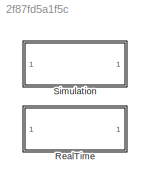
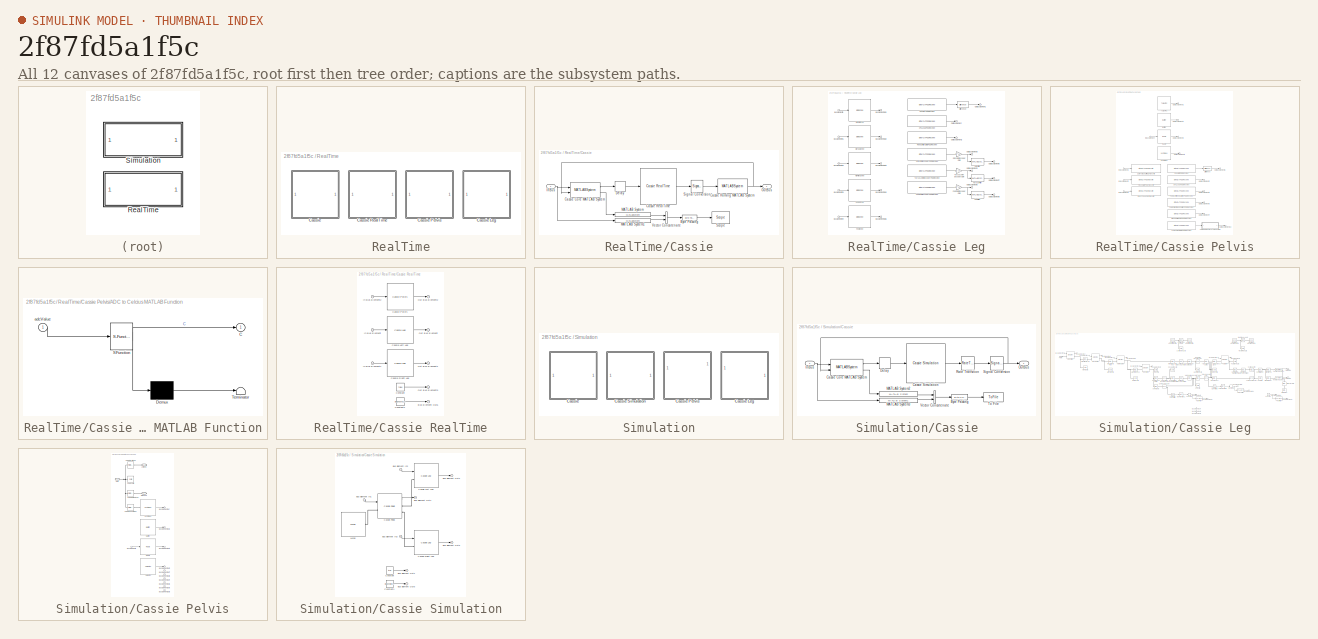
[diagram: thumbnail index - all 12 canvases of the model, root first then tree order]
MODEL slx_2f87fd5a1f5c
KIND library
CONFIG AbsTol = auto
CONFIG EnableMultiTasking = off
CONFIG FixedStep = auto
CONFIG MaxStep = auto
CONFIG MinStep = auto
CONFIG RelTol = 1e-3
CONFIG SampleTimeConstraint = Unconstrained
CONFIG Solver = VariableStepAuto
CONFIG SolverName = VariableStepAuto
CONFIG StartTime = 0.0
CONFIG StopTime = 10.0
BLOCK [SubSystem] RealTime
  Ports = []
  RequestExecContextInheritance = off
  Variant = off
BLOCK [SubSystem] RealTime/Cassie
  InitFcn = % Import bus definitions\nCassieModule.importBuses;
  Ports = [1, 1]
  RequestExecContextInheritance = off
  Variant = off
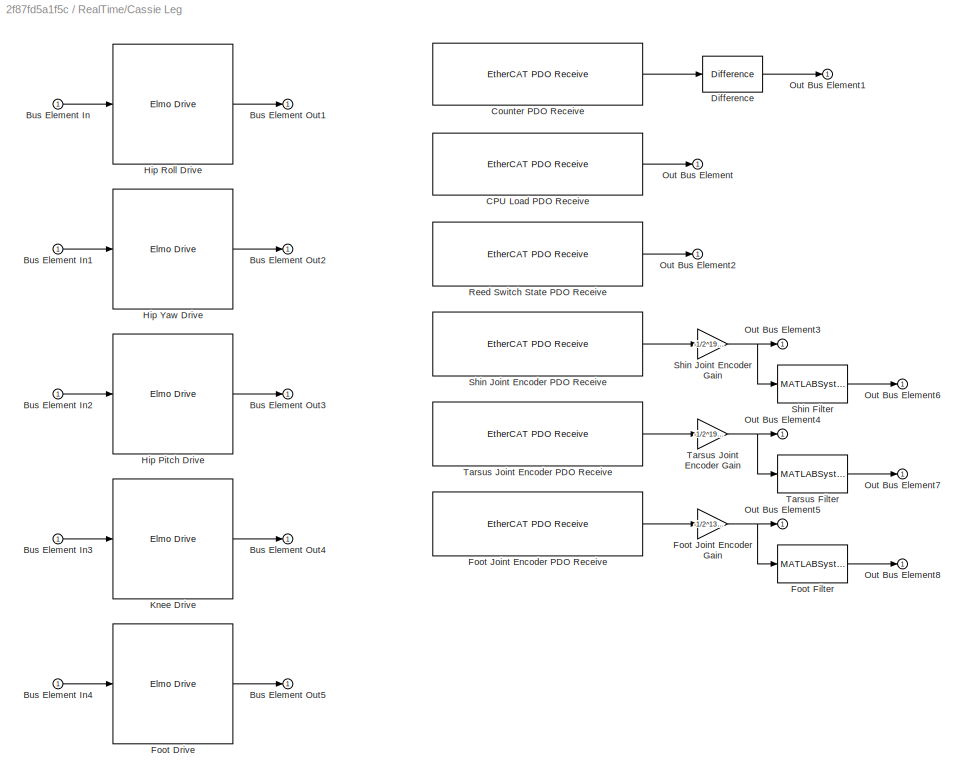
BLOCK [SubSystem] RealTime/Cassie Leg
  PermitHierarchicalResolution = None
  Ports = [1, 1]
  RequestExecContextInheritance = off
  Variant = off
BLOCK [Inport] RealTime/Cassie Leg/Bus Element In
  IconDisplay = Port number
BLOCK [Inport] RealTime/Cassie Leg/Bus Element In1
  IconDisplay = Port number
BLOCK [Inport] RealTime/Cassie Leg/Bus Element In2
  IconDisplay = Port number
BLOCK [Inport] RealTime/Cassie Leg/Bus Element In3
  IconDisplay = Port number
BLOCK [Inport] RealTime/Cassie Leg/Bus Element In4
  IconDisplay = Port number
BLOCK [Outport] RealTime/Cassie Leg/Bus Element Out1
  IconDisplay = Port number
BLOCK [Outport] RealTime/Cassie Leg/Bus Element Out2
  IconDisplay = Port number
BLOCK [Outport] RealTime/Cassie Leg/Bus Element Out3
  IconDisplay = Port number
BLOCK [Outport] RealTime/Cassie Leg/Bus Element Out4
  IconDisplay = Port number
BLOCK [Outport] RealTime/Cassie Leg/Bus Element Out5
  IconDisplay = Port number
BLOCK [Reference] RealTime/Cassie Leg/CPU Load PDO Receive  REF=xpcethercatlib/EtherCAT PDO Receive
  Ports = [0, 1]
  Priority = 2
  SourceBlock = xpcethercatlib/EtherCAT PDO Receive
  SourceProductBaseCode = XP
  SourceProductName = Simulink Real-Time
  SourceType = xpcethercat_rx_var
BLOCK [Reference] RealTime/Cassie Leg/Counter PDO Receive  REF=xpcethercatlib/EtherCAT PDO Receive
  Ports = [0, 1]
  Priority = 2
  SourceBlock = xpcethercatlib/EtherCAT PDO Receive
  SourceProductBaseCode = XP
  SourceProductName = Simulink Real-Time
  SourceType = xpcethercat_rx_var
BLOCK [Reference] RealTime/Cassie Leg/Difference  REF=simulink/Discrete/Difference
  Ports = [1, 1]
  SourceBlock = simulink/Discrete/Difference
  SourceProductBaseCode = SL
  SourceProductName = Simulink
  SourceType = Difference
BLOCK [Reference] RealTime/Cassie Leg/Foot Drive  REF=ComponentLibrary/RealTime/Elmo Drive
  Ports = [1, 1]
  SourceBlock = ComponentLibrary/RealTime/Elmo Drive
BLOCK [MATLABSystem] RealTime/Cassie Leg/Foot Filter
  MaskDisplay = disp('Filter');
  MaskType = FilterSystem
  Ports = [1, 1]
  SimulateUsing = Code generation
  System = FilterSystem
  a = []
  b = []
BLOCK [Gain] RealTime/Cassie Leg/Foot Joint Encoder Gain
  Gain = -1/2^13*2*pi
  OutDataTypeStr = double
  ParamDataTypeStr = double
  SaturateOnIntegerOverflow = off
BLOCK [Reference] RealTime/Cassie Leg/Foot Joint Encoder PDO Receive  REF=xpcethercatlib/EtherCAT PDO Receive
  Ports = [0, 1]
  Priority = 2
  SourceBlock = xpcethercatlib/EtherCAT PDO Receive
  SourceProductBaseCode = XP
  SourceProductName = Simulink Real-Time
  SourceType = xpcethercat_rx_var
BLOCK [Reference] RealTime/Cassie Leg/Hip Pitch Drive  REF=ComponentLibrary/RealTime/Elmo Drive
  Ports = [1, 1]
  SourceBlock = ComponentLibrary/RealTime/Elmo Drive
BLOCK [Reference] RealTime/Cassie Leg/Hip Roll Drive  REF=ComponentLibrary/RealTime/Elmo Drive
  Ports = [1, 1]
  SourceBlock = ComponentLibrary/RealTime/Elmo Drive
BLOCK [Reference] RealTime/Cassie Leg/Hip Yaw Drive  REF=ComponentLibrary/RealTime/Elmo Drive
  Ports = [1, 1]
  SourceBlock = ComponentLibrary/RealTime/Elmo Drive
BLOCK [Reference] RealTime/Cassie Leg/Knee Drive  REF=ComponentLibrary/RealTime/Elmo Drive
  Ports = [1, 1]
  SourceBlock = ComponentLibrary/RealTime/Elmo Drive
BLOCK [Outport] RealTime/Cassie Leg/Out Bus Element
  IconDisplay = Port number
BLOCK [Outport] RealTime/Cassie Leg/Out Bus Element1
  IconDisplay = Port number
BLOCK [Outport] RealTime/Cassie Leg/Out Bus Element2
  IconDisplay = Port number
BLOCK [Outport] RealTime/Cassie Leg/Out Bus Element3
  IconDisplay = Port number
BLOCK [Outport] RealTime/Cassie Leg/Out Bus Element4
  IconDisplay = Port number
BLOCK [Outport] RealTime/Cassie Leg/Out Bus Element5
  IconDisplay = Port number
BLOCK [Outport] RealTime/Cassie Leg/Out Bus Element6
  IconDisplay = Port number
BLOCK [Outport] RealTime/Cassie Leg/Out Bus Element7
  IconDisplay = Port number
BLOCK [Outport] RealTime/Cassie Leg/Out Bus Element8
  IconDisplay = Port number
BLOCK [Reference] RealTime/Cassie Leg/Reed Switch State PDO Receive  REF=xpcethercatlib/EtherCAT PDO Receive
  Ports = [0, 1]
  Priority = 2
  SourceBlock = xpcethercatlib/EtherCAT PDO Receive
  SourceProductBaseCode = XP
  SourceProductName = Simulink Real-Time
  SourceType = xpcethercat_rx_var
BLOCK [MATLABSystem] RealTime/Cassie Leg/Shin Filter
  MaskDisplay = disp('Filter');
  MaskType = FilterSystem
  Ports = [1, 1]
  SimulateUsing = Code generation
  System = FilterSystem
  a = []
  b = []
BLOCK [Gain] RealTime/Cassie Leg/Shin Joint Encoder Gain
  Gain = -1/2^19*2*pi
  OutDataTypeStr = double
  ParamDataTypeStr = double
  SaturateOnIntegerOverflow = off
BLOCK [Reference] RealTime/Cassie Leg/Shin Joint Encoder PDO Receive  REF=xpcethercatlib/EtherCAT PDO Receive
  Ports = [0, 1]
  Priority = 2
  SourceBlock = xpcethercatlib/EtherCAT PDO Receive
  SourceProductBaseCode = XP
  SourceProductName = Simulink Real-Time
  SourceType = xpcethercat_rx_var
BLOCK [MATLABSystem] RealTime/Cassie Leg/Tarsus Filter
  MaskDisplay = disp('Filter');
  MaskType = FilterSystem
  Ports = [1, 1]
  SimulateUsing = Code generation
  System = FilterSystem
  a = []
  b = []
BLOCK [Gain] RealTime/Cassie Leg/Tarsus Joint Encoder Gain
  Gain = -1/2^19*2*pi
  OutDataTypeStr = double
  ParamDataTypeStr = double
  SaturateOnIntegerOverflow = off
BLOCK [Reference] RealTime/Cassie Leg/Tarsus Joint Encoder PDO Receive  REF=xpcethercatlib/EtherCAT PDO Receive
  Ports = [0, 1]
  Priority = 2
  SourceBlock = xpcethercatlib/EtherCAT PDO Receive
  SourceProductBaseCode = XP
  SourceProductName = Simulink Real-Time
  SourceType = xpcethercat_rx_var
BLOCK [SubSystem] RealTime/Cassie Pelvis
  PermitHierarchicalResolution = None
  Ports = [1, 1]
  RequestExecContextInheritance = off
  Variant = off
BLOCK [SubSystem] RealTime/Cassie Pelvis/ADC to Celcius MATLAB Function
  ErrorFcn = Stateflow.Translate.translate
  PermitHierarchicalResolution = ExplicitOnly
  Ports = [1, 1]
  RequestExecContextInheritance = off
  SFBlockType = MATLAB Function
  TreatAsAtomicUnit = on
  Variant = off
BLOCK [Demux] RealTime/Cassie Pelvis/ADC to Celcius MATLAB Function/ Demux 
  Outputs = 1
  Ports = [1, 1]
BLOCK [S-Function] RealTime/Cassie Pelvis/ADC to Celcius MATLAB Function/ SFunction 
  EnableBusSupport = off
  FunctionName = sf_sfun
  PortCounts = [1 2]
  Ports = [1, 2]
  SFcnIsStateOwnerBlock = off
  SFunctionDeploymentMode = off
  Tag = Stateflow S-Function CassieLibrary 1
BLOCK [Terminator] RealTime/Cassie Pelvis/ADC to Celcius MATLAB Function/ Terminator 
BLOCK [Outport] RealTime/Cassie Pelvis/ADC to Celcius MATLAB Function/C
  IconDisplay = Port number
BLOCK [Inport] RealTime/Cassie Pelvis/ADC to Celcius MATLAB Function/adcValue
  IconDisplay = Port number
BLOCK [Reference] RealTime/Cassie Pelvis/Battery  REF=ComponentLibrary/RealTime/Battery
  Ports = [0, 1]
  SourceBlock = ComponentLibrary/RealTime/Battery
BLOCK [Reference] RealTime/Cassie Pelvis/Bleeder Triggered PDO Receive  REF=xpcethercatlib/EtherCAT PDO Receive
  Ports = [0, 1]
  Priority = 2
  SourceBlock = xpcethercatlib/EtherCAT PDO Receive
  SourceProductBaseCode = XP
  SourceProductName = Simulink Real-Time
  SourceType = xpcethercat_rx_var
BLOCK [Reference] RealTime/Cassie Pelvis/CPU Load PDO Receive  REF=xpcethercatlib/EtherCAT PDO Receive
  Ports = [0, 1]
  Priority = 2
  SourceBlock = xpcethercatlib/EtherCAT PDO Receive
  SourceProductBaseCode = XP
  SourceProductName = Simulink Real-Time
  SourceType = xpcethercat_rx_var
BLOCK [Reference] RealTime/Cassie Pelvis/Counter PDO Receive  REF=xpcethercatlib/EtherCAT PDO Receive
  Ports = [0, 1]
  Priority = 2
  SourceBlock = xpcethercatlib/EtherCAT PDO Receive
  SourceProductBaseCode = XP
  SourceProductName = Simulink Real-Time
  SourceType = xpcethercat_rx_var
BLOCK [Reference] RealTime/Cassie Pelvis/Difference  REF=simulink/Discrete/Difference
  Ports = [1, 1]
  SourceBlock = simulink/Discrete/Difference
  SourceProductBaseCode = SL
  SourceProductName = Simulink
  SourceType = Difference
BLOCK [Inport] RealTime/Cassie Pelvis/In Bus Element
  IconDisplay = Port number
BLOCK [Inport] RealTime/Cassie Pelvis/In Bus Element1
  IconDisplay = Port number
BLOCK [Inport] RealTime/Cassie Pelvis/In Bus Element2
  IconDisplay = Port number
BLOCK [Inport] RealTime/Cassie Pelvis/In Bus Element3
  IconDisplay = Port number
BLOCK [Outport] RealTime/Cassie Pelvis/Out Bus Element1
  IconDisplay = Port number
BLOCK [Outport] RealTime/Cassie Pelvis/Out Bus Element10
  IconDisplay = Port number
BLOCK [Outport] RealTime/Cassie Pelvis/Out Bus Element2
  IconDisplay = Port number
BLOCK [Outport] RealTime/Cassie Pelvis/Out Bus Element3
  IconDisplay = Port number
BLOCK [Outport] RealTime/Cassie Pelvis/Out Bus Element4
  IconDisplay = Port number
BLOCK [Outport] RealTime/Cassie Pelvis/Out Bus Element5
  IconDisplay = Port number
BLOCK [Outport] RealTime/Cassie Pelvis/Out Bus Element6
  IconDisplay = Port number
BLOCK [Outport] RealTime/Cassie Pelvis/Out Bus Element7
  IconDisplay = Port number
BLOCK [Outport] RealTime/Cassie Pelvis/Out Bus Element8
  IconDisplay = Port number
BLOCK [Outport] RealTime/Cassie Pelvis/Out Bus Element9
  IconDisplay = Port number
BLOCK [Reference] RealTime/Cassie Pelvis/Pelvis Left Reed Switch PDO Receive  REF=xpcethercatlib/EtherCAT PDO Receive
  Ports = [0, 1]
  Priority = 2
  SourceBlock = xpcethercatlib/EtherCAT PDO Receive
  SourceProductBaseCode = XP
  SourceProductName = Simulink Real-Time
  SourceType = xpcethercat_rx_var
BLOCK [Reference] RealTime/Cassie Pelvis/Pelvis Right Reed Switch PDO Receive  REF=xpcethercatlib/EtherCAT PDO Receive
  Ports = [0, 1]
  Priority = 2
  SourceBlock = xpcethercatlib/EtherCAT PDO Receive
  SourceProductBaseCode = XP
  SourceProductName = Simulink Real-Time
  SourceType = xpcethercat_rx_var
BLOCK [Reference] RealTime/Cassie Pelvis/Piezo State PDO Transmit  REF=xpcethercatlib/EtherCAT PDO Transmit 
  Ports = [1]
  Priority = 3
  SourceBlock = xpcethercatlib/EtherCAT PDO Transmit
  SourceProductBaseCode = XP
  SourceProductName = Simulink Real-Time
  SourceType = xpcethercat_tx_var
BLOCK [Reference] RealTime/Cassie Pelvis/Piezo Tone PDO Transmit  REF=xpcethercatlib/EtherCAT PDO Transmit 
  Ports = [1]
  Priority = 3
  SourceBlock = xpcethercatlib/EtherCAT PDO Transmit
  SourceProductBaseCode = XP
  SourceProductName = Simulink Real-Time
  SourceType = xpcethercat_tx_var
BLOCK [Reference] RealTime/Cassie Pelvis/Radio  REF=ComponentLibrary/RealTime/Radio
  Ports = [1, 1]
  SourceBlock = ComponentLibrary/RealTime/Radio
BLOCK [Reference] RealTime/Cassie Pelvis/Safe Torque Off PDO Transmit  REF=xpcethercatlib/EtherCAT PDO Transmit 
  Ports = [1]
  Priority = 3
  SourceBlock = xpcethercatlib/EtherCAT PDO Transmit
  SourceProductBaseCode = XP
  SourceProductName = Simulink Real-Time
  SourceType = xpcethercat_tx_var
BLOCK [Reference] RealTime/Cassie Pelvis/Target PC  REF=ComponentLibrary/RealTime/Target PC
  Ports = [0, 1]
  SourceBlock = ComponentLibrary/RealTime/Target PC
BLOCK [Reference] RealTime/Cassie Pelvis/VTM Temperature PDO Receive  REF=xpcethercatlib/EtherCAT PDO Receive
  Ports = [0, 1]
  Priority = 2
  SourceBlock = xpcethercatlib/EtherCAT PDO Receive
  SourceProductBaseCode = XP
  SourceProductName = Simulink Real-Time
  SourceType = xpcethercat_rx_var
BLOCK [Reference] RealTime/Cassie Pelvis/VectorNav  REF=ComponentLibrary/RealTime/VectorNav
  Ports = [0, 1]
  SourceBlock = ComponentLibrary/RealTime/VectorNav
BLOCK [SubSystem] RealTime/Cassie RealTime
  PermitHierarchicalResolution = None
  Ports = [1, 1]
  RequestExecContextInheritance = off
  Variant = off
BLOCK [Outport] RealTime/Cassie RealTime/Bus Element Out5
  IconDisplay = Port number
BLOCK [Reference] RealTime/Cassie RealTime/Cassie Left Leg  REF=CassieLibrary/RealTime/Cassie Leg
  Ports = [1, 1]
  SourceBlock = CassieLibrary/RealTime/Cassie Leg
BLOCK [Reference] RealTime/Cassie RealTime/Cassie Pelvis  REF=CassieLibrary/RealTime/Cassie Pelvis
  Ports = [1, 1]
  SourceBlock = CassieLibrary/RealTime/Cassie Pelvis
  SourceType = SubSystem
BLOCK [Reference] RealTime/Cassie RealTime/Cassie Right Leg  REF=CassieLibrary/RealTime/Cassie Leg
  Ports = [1, 1]
  SourceBlock = CassieLibrary/RealTime/Cassie Leg
BLOCK [Constant] RealTime/Cassie RealTime/Constant
  Value = false
BLOCK [Constant] RealTime/Cassie RealTime/Constant1
  Value = DiagnosticCodes(zeros(4,1))
BLOCK [Inport] RealTime/Cassie RealTime/In Bus Element
  IconDisplay = Port number
BLOCK [Inport] RealTime/Cassie RealTime/In Bus Element1
  IconDisplay = Port number
BLOCK [Inport] RealTime/Cassie RealTime/In Bus Element2
  IconDisplay = Port number
BLOCK [Outport] RealTime/Cassie RealTime/Out Bus Element
  IconDisplay = Port number
BLOCK [Outport] RealTime/Cassie RealTime/Out Bus Element1
  IconDisplay = Port number
BLOCK [Outport] RealTime/Cassie RealTime/Out Bus Element2
  IconDisplay = Port number
BLOCK [Outport] RealTime/Cassie RealTime/Out Bus Element3
  IconDisplay = Port number
BLOCK [Reference] RealTime/Cassie/Byte Packing   REF=xpcutilitieslib/Byte Packing 
  Ports = [1, 1]
  SourceBlock = xpcutilitieslib/Byte Packing
  SourceProductBaseCode = XP
  SourceProductName = Simulink Real-Time
  SourceType = xpcbytepacking
BLOCK [MATLABSystem] RealTime/Cassie/Cassie Core MATLAB System
  MaskDisplay = disp('CassieCore');
  MaskType = CassieCore
  Ports = [2, 2]
  SimulateUsing = Code generation
  System = CassieCore
BLOCK [MATLABSystem] RealTime/Cassie/Cassie Homing MATLAB System
  MaskDisplay = disp('CassieHoming');
  MaskType = CassieHoming
  Ports = [1, 1]
  SimulateUsing = Code generation
  System = CassieHoming
BLOCK [Reference] RealTime/Cassie/Cassie RealTime  REF=CassieLibrary/RealTime/Cassie RealTime
  Ports = [1, 1]
  SourceBlock = CassieLibrary/RealTime/Cassie RealTime
BLOCK [Delay] RealTime/Cassie/Delay
  DelayLength = 1
  InputPortMap = u0
  Ports = [1, 1]
BLOCK [Inport] RealTime/Cassie/InBus
  IconDisplay = Port number
  OutDataTypeStr = Bus: CassieUserInBus
BLOCK [MATLABSystem] RealTime/Cassie/MATLAB System
  MaskDisplay = disp('CassieOutBusToBytes');
  MaskType = CassieOutBusToBytes
  Ports = [1, 1]
  SimulateUsing = Code generation
  System = CassieOutBusToBytes
BLOCK [MATLABSystem] RealTime/Cassie/MATLAB System1
  MaskDisplay = disp('CassieUserInBusToBytes');
  MaskType = CassieUserInBusToBytes
  Ports = [1, 1]
  SimulateUsing = Code generation
  System = CassieUserInBusToBytes
BLOCK [Outport] RealTime/Cassie/OutBus
  IconDisplay = Port number
  OutDataTypeStr = Bus: CassieOutBus
BLOCK [Reference] RealTime/Cassie/Scope   REF=slrtlib/Displays and
Logging/Scope 
  Ports = [1]
  SourceBlock = slrtlib/Displays and\nLogging/Scope
  SourceProductBaseCode = XP
  SourceProductName = Simulink Real-Time
  SourceType = xpcscopeblock
BLOCK [SignalConversion] RealTime/Cassie/Signal Conversion
  ConversionOutput = Nonvirtual bus
  OutDataTypeStr = Bus: CassieOutBus
  OverrideOpt = off
BLOCK [Concatenate] RealTime/Cassie/Vector Concatenate
  Ports = [2, 1]
BLOCK [SubSystem] Simulation
  Ports = []
  RequestExecContextInheritance = off
  Variant = off
BLOCK [SubSystem] Simulation/Cassie
  InitFcn = % Start clock at initialization (used for computing real time performance)\ninitTime = tic;\n\n% Import bus definitions\nCassieModule.importBuses;
  Ports = [1, 1]
  RequestExecContextInheritance = off
  StartFcn = % Store build time\nbuildTime = toc(initTime);
  StopFcn = % Store computation time\ncomputationTime = toc(initTime) - buildTime;\n\n% Get simulation time\nsimulationTime = get_param(bdroot, 'SimulationTime');\n\n% Compute real time performance\npercentRealTime = 100*simulationTime/computationTime;\n\n% Display\nfprintf('Build time: %0.2f seconds \n', buildTime);\nfprintf('Simulation time: %0.2f seconds \n', simulationTime);\nfprintf('Computation time: %0.2f seconds ...<+85ch>
  Variant = off
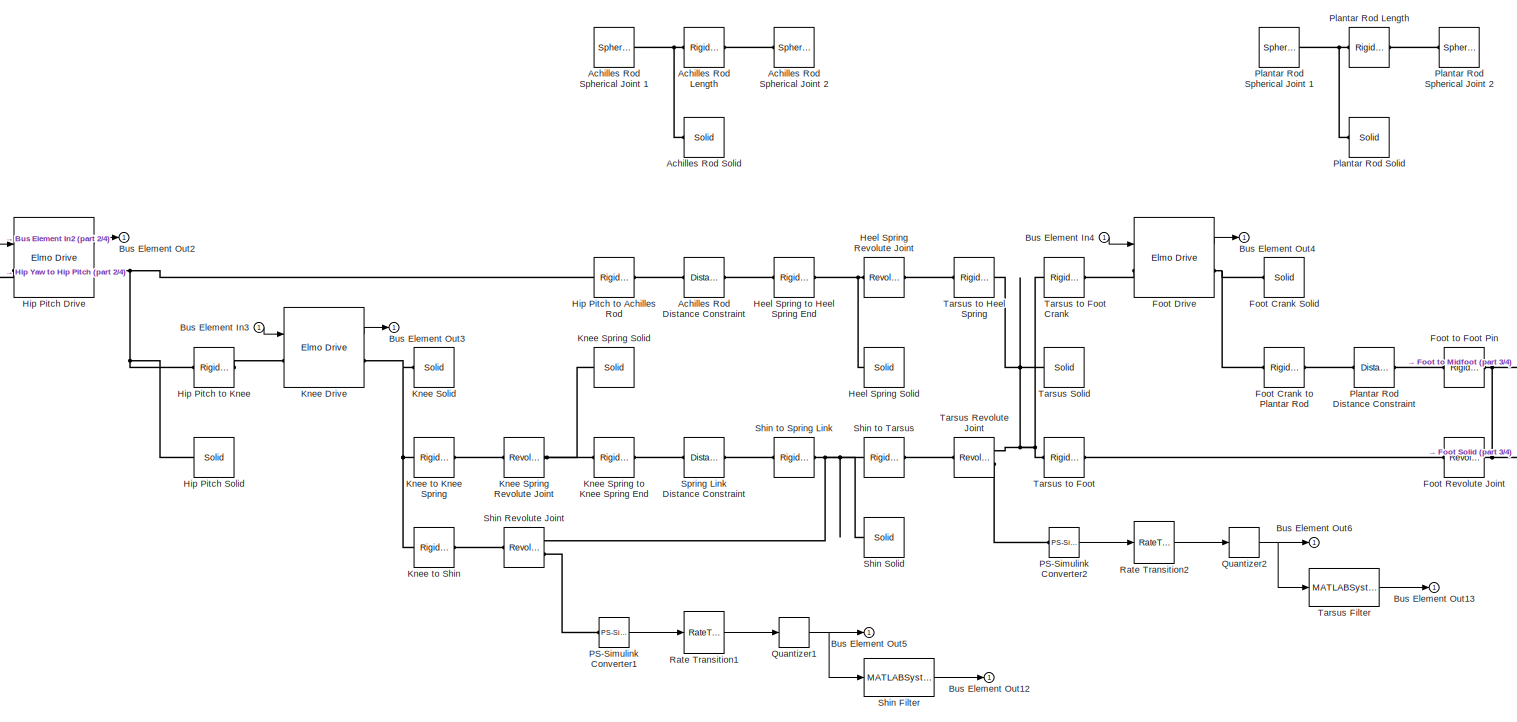
[diagram: Simulation/Cassie Leg - part 1/4, center side, full height]
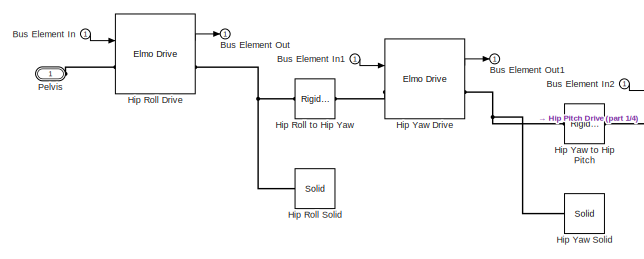
[diagram: Simulation/Cassie Leg - part 2/4, middle left region]
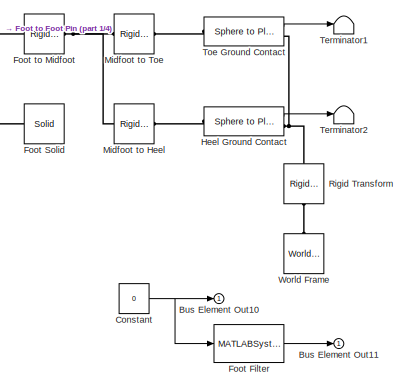
[diagram: Simulation/Cassie Leg - part 3/4, middle right region]
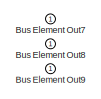
[diagram: Simulation/Cassie Leg - part 4/4, bottom center region]
BLOCK [SubSystem] Simulation/Cassie Leg
  Ports = [1, 1, 0, 0, 0, 1]
  RequestExecContextInheritance = off
  Variant = off
BLOCK [Reference] Simulation/Cassie Leg/Achilles Rod Distance Constraint  REF=sm_lib/Constraints/Distance
Constraint
  Ports = [0, 0, 0, 0, 0, 1, 1]
  SourceBlock = sm_lib/Constraints/Distance\nConstraint
  SourceProductBaseCode = MS
  SourceProductName = Simscape Multibody
  SourceType = Distance\nConstraint
BLOCK [Reference] Simulation/Cassie Leg/Achilles Rod Length  REF=sm_lib/Frames and
Transforms/Rigid
Transform
  Commented = on
  Ports = [0, 0, 0, 0, 0, 1, 1]
  SourceBlock = sm_lib/Frames and\nTransforms/Rigid\nTransform
  SourceProductBaseCode = MS
  SourceProductName = Simscape Multibody
  SourceType = Rigid\nTransform
BLOCK [Reference] Simulation/Cassie Leg/Achilles Rod Solid  REF=sm_lib/Body Elements/Solid
  Commented = on
  Ports = [0, 0, 0, 0, 0, 0, 1]
  SourceBlock = sm_lib/Body Elements/Solid
  SourceProductBaseCode = MS
  SourceProductName = Simscape Multibody
  SourceType = Solid
BLOCK [Reference] Simulation/Cassie Leg/Achilles Rod Spherical Joint 1  REF=sm_lib/Joints/Spherical
Joint
  Commented = on
  Ports = [0, 0, 0, 0, 0, 1, 1]
  SourceBlock = sm_lib/Joints/Spherical\nJoint
  SourceProductBaseCode = MS
  SourceProductName = Simscape Multibody
  SourceType = Spherical\nJoint
BLOCK [Reference] Simulation/Cassie Leg/Achilles Rod Spherical Joint 2  REF=sm_lib/Joints/Spherical
Joint
  Commented = on
  Ports = [0, 0, 0, 0, 0, 1, 1]
  SourceBlock = sm_lib/Joints/Spherical\nJoint
  SourceProductBaseCode = MS
  SourceProductName = Simscape Multibody
  SourceType = Spherical\nJoint
BLOCK [Inport] Simulation/Cassie Leg/Bus Element In
  IconDisplay = Port number
BLOCK [Inport] Simulation/Cassie Leg/Bus Element In1
  IconDisplay = Port number
BLOCK [Inport] Simulation/Cassie Leg/Bus Element In2
  IconDisplay = Port number
BLOCK [Inport] Simulation/Cassie Leg/Bus Element In3
  IconDisplay = Port number
BLOCK [Inport] Simulation/Cassie Leg/Bus Element In4
  IconDisplay = Port number
BLOCK [Outport] Simulation/Cassie Leg/Bus Element Out
  IconDisplay = Port number
BLOCK [Outport] Simulation/Cassie Leg/Bus Element Out1
  IconDisplay = Port number
BLOCK [Outport] Simulation/Cassie Leg/Bus Element Out10
  IconDisplay = Port number
BLOCK [Outport] Simulation/Cassie Leg/Bus Element Out11
  IconDisplay = Port number
BLOCK [Outport] Simulation/Cassie Leg/Bus Element Out12
  IconDisplay = Port number
BLOCK [Outport] Simulation/Cassie Leg/Bus Element Out13
  IconDisplay = Port number
BLOCK [Outport] Simulation/Cassie Leg/Bus Element Out2
  IconDisplay = Port number
BLOCK [Outport] Simulation/Cassie Leg/Bus Element Out3
  IconDisplay = Port number
BLOCK [Outport] Simulation/Cassie Leg/Bus Element Out4
  IconDisplay = Port number
BLOCK [Outport] Simulation/Cassie Leg/Bus Element Out5
  IconDisplay = Port number
BLOCK [Outport] Simulation/Cassie Leg/Bus Element Out6
  IconDisplay = Port number
BLOCK [Outport] Simulation/Cassie Leg/Bus Element Out7
  IconDisplay = Port number
BLOCK [Outport] Simulation/Cassie Leg/Bus Element Out8
  IconDisplay = Port number
BLOCK [Outport] Simulation/Cassie Leg/Bus Element Out9
  IconDisplay = Port number
BLOCK [Constant] Simulation/Cassie Leg/Constant
  Value = 0
BLOCK [Reference] Simulation/Cassie Leg/Foot Crank Solid  REF=sm_lib/Body Elements/Solid
  Ports = [0, 0, 0, 0, 0, 0, 1]
  SourceBlock = sm_lib/Body Elements/Solid
  SourceProductBaseCode = MS
  SourceProductName = Simscape Multibody
  SourceType = Solid
BLOCK [Reference] Simulation/Cassie Leg/Foot Crank to Plantar Rod  REF=sm_lib/Frames and
Transforms/Rigid
Transform
  Ports = [0, 0, 0, 0, 0, 1, 1]
  SourceBlock = sm_lib/Frames and\nTransforms/Rigid\nTransform
  SourceProductBaseCode = MS
  SourceProductName = Simscape Multibody
  SourceType = Rigid\nTransform
BLOCK [Reference] Simulation/Cassie Leg/Foot Drive  REF=ComponentLibrary/Simulation/Elmo Drive
  Ports = [1, 1, 0, 0, 0, 1, 1]
  SourceBlock = ComponentLibrary/Simulation/Elmo Drive
BLOCK [MATLABSystem] Simulation/Cassie Leg/Foot Filter
  MaskDisplay = disp('Filter');
  MaskType = FilterSystem
  Ports = [1, 1]
  SimulateUsing = Code generation
  System = FilterSystem
  a = []
  b = []
BLOCK [Reference] Simulation/Cassie Leg/Foot Revolute Joint  REF=sm_lib/Joints/Revolute Joint
  Ports = [0, 0, 0, 0, 0, 1, 1]
  SourceBlock = sm_lib/Joints/Revolute Joint
  SourceProductBaseCode = MS
  SourceProductName = Simscape Multibody
  SourceType = Revolute Joint
BLOCK [Reference] Simulation/Cassie Leg/Foot Solid  REF=sm_lib/Body Elements/Solid
  Ports = [0, 0, 0, 0, 0, 0, 1]
  SourceBlock = sm_lib/Body Elements/Solid
  SourceProductBaseCode = MS
  SourceProductName = Simscape Multibody
  SourceType = Solid
BLOCK [Reference] Simulation/Cassie Leg/Foot to Foot Pin  REF=sm_lib/Frames and
Transforms/Rigid
Transform
  Ports = [0, 0, 0, 0, 0, 1, 1]
  SourceBlock = sm_lib/Frames and\nTransforms/Rigid\nTransform
  SourceProductBaseCode = MS
  SourceProductName = Simscape Multibody
  SourceType = Rigid\nTransform
BLOCK [Reference] Simulation/Cassie Leg/Foot to Midfoot  REF=sm_lib/Frames and
Transforms/Rigid
Transform
  Ports = [0, 0, 0, 0, 0, 1, 1]
  SourceBlock = sm_lib/Frames and\nTransforms/Rigid\nTransform
  SourceProductBaseCode = MS
  SourceProductName = Simscape Multibody
  SourceType = Rigid\nTransform
BLOCK [Reference] Simulation/Cassie Leg/Heel Ground Contact  REF=Contact_Forces_Lib/3D/Sphere to Plane Force
  Ports = [0, 1, 0, 0, 0, 1, 1]
  SourceBlock = Contact_Forces_Lib/3D/Sphere to Plane Force
  SourceProductName = Simscape Multibody Contact Forces Library
  SourceType = Sphere to Plane Force
BLOCK [Reference] Simulation/Cassie Leg/Heel Spring Revolute Joint  REF=sm_lib/Joints/Revolute Joint
  Ports = [0, 0, 0, 0, 0, 1, 1]
  SourceBlock = sm_lib/Joints/Revolute Joint
  SourceProductBaseCode = MS
  SourceProductName = Simscape Multibody
  SourceType = Revolute Joint
BLOCK [Reference] Simulation/Cassie Leg/Heel Spring Solid  REF=sm_lib/Body Elements/Solid
  Ports = [0, 0, 0, 0, 0, 0, 1]
  SourceBlock = sm_lib/Body Elements/Solid
  SourceProductBaseCode = MS
  SourceProductName = Simscape Multibody
  SourceType = Solid
BLOCK [Reference] Simulation/Cassie Leg/Heel Spring to Heel Spring End  REF=sm_lib/Frames and
Transforms/Rigid
Transform
  Ports = [0, 0, 0, 0, 0, 1, 1]
  SourceBlock = sm_lib/Frames and\nTransforms/Rigid\nTransform
  SourceProductBaseCode = MS
  SourceProductName = Simscape Multibody
  SourceType = Rigid\nTransform
BLOCK [Reference] Simulation/Cassie Leg/Hip Pitch Drive  REF=ComponentLibrary/Simulation/Elmo Drive
  Ports = [1, 1, 0, 0, 0, 1, 1]
  SourceBlock = ComponentLibrary/Simulation/Elmo Drive
BLOCK [Reference] Simulation/Cassie Leg/Hip Pitch Solid  REF=sm_lib/Body Elements/Solid
  Ports = [0, 0, 0, 0, 0, 0, 1]
  SourceBlock = sm_lib/Body Elements/Solid
  SourceProductBaseCode = MS
  SourceProductName = Simscape Multibody
  SourceType = Solid
BLOCK [Reference] Simulation/Cassie Leg/Hip Pitch to Achilles Rod  REF=sm_lib/Frames and
Transforms/Rigid
Transform
  Ports = [0, 0, 0, 0, 0, 1, 1]
  SourceBlock = sm_lib/Frames and\nTransforms/Rigid\nTransform
  SourceProductBaseCode = MS
  SourceProductName = Simscape Multibody
  SourceType = Rigid\nTransform
BLOCK [Reference] Simulation/Cassie Leg/Hip Pitch to Knee  REF=sm_lib/Frames and
Transforms/Rigid
Transform
  Ports = [0, 0, 0, 0, 0, 1, 1]
  SourceBlock = sm_lib/Frames and\nTransforms/Rigid\nTransform
  SourceProductBaseCode = MS
  SourceProductName = Simscape Multibody
  SourceType = Rigid\nTransform
BLOCK [Reference] Simulation/Cassie Leg/Hip Roll Drive  REF=ComponentLibrary/Simulation/Elmo Drive
  Ports = [1, 1, 0, 0, 0, 1, 1]
  SourceBlock = ComponentLibrary/Simulation/Elmo Drive
BLOCK [Reference] Simulation/Cassie Leg/Hip Roll Solid  REF=sm_lib/Body Elements/Solid
  Ports = [0, 0, 0, 0, 0, 0, 1]
  SourceBlock = sm_lib/Body Elements/Solid
  SourceProductBaseCode = MS
  SourceProductName = Simscape Multibody
  SourceType = Solid
BLOCK [Reference] Simulation/Cassie Leg/Hip Roll to Hip Yaw  REF=sm_lib/Frames and
Transforms/Rigid
Transform
  Ports = [0, 0, 0, 0, 0, 1, 1]
  SourceBlock = sm_lib/Frames and\nTransforms/Rigid\nTransform
  SourceProductBaseCode = MS
  SourceProductName = Simscape Multibody
  SourceType = Rigid\nTransform
BLOCK [Reference] Simulation/Cassie Leg/Hip Yaw Drive  REF=ComponentLibrary/Simulation/Elmo Drive
  Ports = [1, 1, 0, 0, 0, 1, 1]
  SourceBlock = ComponentLibrary/Simulation/Elmo Drive
BLOCK [Reference] Simulation/Cassie Leg/Hip Yaw Solid  REF=sm_lib/Body Elements/Solid
  Ports = [0, 0, 0, 0, 0, 0, 1]
  SourceBlock = sm_lib/Body Elements/Solid
  SourceProductBaseCode = MS
  SourceProductName = Simscape Multibody
  SourceType = Solid
BLOCK [Reference] Simulation/Cassie Leg/Hip Yaw to Hip Pitch  REF=sm_lib/Frames and
Transforms/Rigid
Transform
  Ports = [0, 0, 0, 0, 0, 1, 1]
  SourceBlock = sm_lib/Frames and\nTransforms/Rigid\nTransform
  SourceProductBaseCode = MS
  SourceProductName = Simscape Multibody
  SourceType = Rigid\nTransform
BLOCK [Reference] Simulation/Cassie Leg/Knee Drive  REF=ComponentLibrary/Simulation/Elmo Drive
  Ports = [1, 1, 0, 0, 0, 1, 1]
  SourceBlock = ComponentLibrary/Simulation/Elmo Drive
BLOCK [Reference] Simulation/Cassie Leg/Knee Solid  REF=sm_lib/Body Elements/Solid
  Ports = [0, 0, 0, 0, 0, 0, 1]
  SourceBlock = sm_lib/Body Elements/Solid
  SourceProductBaseCode = MS
  SourceProductName = Simscape Multibody
  SourceType = Solid
BLOCK [Reference] Simulation/Cassie Leg/Knee Spring Revolute Joint  REF=sm_lib/Joints/Revolute Joint
  Ports = [0, 0, 0, 0, 0, 1, 1]
  SourceBlock = sm_lib/Joints/Revolute Joint
  SourceProductBaseCode = MS
  SourceProductName = Simscape Multibody
  SourceType = Revolute Joint
BLOCK [Reference] Simulation/Cassie Leg/Knee Spring Solid  REF=sm_lib/Body Elements/Solid
  Ports = [0, 0, 0, 0, 0, 0, 1]
  SourceBlock = sm_lib/Body Elements/Solid
  SourceProductBaseCode = MS
  SourceProductName = Simscape Multibody
  SourceType = Solid
BLOCK [Reference] Simulation/Cassie Leg/Knee Spring to Knee Spring End  REF=sm_lib/Frames and
Transforms/Rigid
Transform
  Ports = [0, 0, 0, 0, 0, 1, 1]
  SourceBlock = sm_lib/Frames and\nTransforms/Rigid\nTransform
  SourceProductBaseCode = MS
  SourceProductName = Simscape Multibody
  SourceType = Rigid\nTransform
BLOCK [Reference] Simulation/Cassie Leg/Knee to Knee Spring  REF=sm_lib/Frames and
Transforms/Rigid
Transform
  Ports = [0, 0, 0, 0, 0, 1, 1]
  SourceBlock = sm_lib/Frames and\nTransforms/Rigid\nTransform
  SourceProductBaseCode = MS
  SourceProductName = Simscape Multibody
  SourceType = Rigid\nTransform
BLOCK [Reference] Simulation/Cassie Leg/Knee to Shin  REF=sm_lib/Frames and
Transforms/Rigid
Transform
  Ports = [0, 0, 0, 0, 0, 1, 1]
  SourceBlock = sm_lib/Frames and\nTransforms/Rigid\nTransform
  SourceProductBaseCode = MS
  SourceProductName = Simscape Multibody
  SourceType = Rigid\nTransform
BLOCK [Reference] Simulation/Cassie Leg/Midfoot to Heel  REF=sm_lib/Frames and
Transforms/Rigid
Transform
  Ports = [0, 0, 0, 0, 0, 1, 1]
  SourceBlock = sm_lib/Frames and\nTransforms/Rigid\nTransform
  SourceProductBaseCode = MS
  SourceProductName = Simscape Multibody
  SourceType = Rigid\nTransform
BLOCK [Reference] Simulation/Cassie Leg/Midfoot to Toe  REF=sm_lib/Frames and
Transforms/Rigid
Transform
  Ports = [0, 0, 0, 0, 0, 1, 1]
  SourceBlock = sm_lib/Frames and\nTransforms/Rigid\nTransform
  SourceProductBaseCode = MS
  SourceProductName = Simscape Multibody
  SourceType = Rigid\nTransform
BLOCK [Reference] Simulation/Cassie Leg/PS-Simulink Converter1  REF=nesl_utility/PS-Simulink
Converter
  Ports = [0, 1, 0, 0, 0, 1]
  SourceBlock = nesl_utility/PS-Simulink\nConverter
  SourceProductBaseCode = SS
  SourceProductName = Simscape
  SourceType = PS-Simulink\nConverter
BLOCK [Reference] Simulation/Cassie Leg/PS-Simulink Converter2  REF=nesl_utility/PS-Simulink
Converter
  Ports = [0, 1, 0, 0, 0, 1]
  SourceBlock = nesl_utility/PS-Simulink\nConverter
  SourceProductBaseCode = SS
  SourceProductName = Simscape
  SourceType = PS-Simulink\nConverter
BLOCK [PMIOPort] Simulation/Cassie Leg/Pelvis
  Port = 1
  Side = Left
BLOCK [Reference] Simulation/Cassie Leg/Plantar Rod Distance Constraint  REF=sm_lib/Constraints/Distance
Constraint
  Ports = [0, 0, 0, 0, 0, 1, 1]
  SourceBlock = sm_lib/Constraints/Distance\nConstraint
  SourceProductBaseCode = MS
  SourceProductName = Simscape Multibody
  SourceType = Distance\nConstraint
BLOCK [Reference] Simulation/Cassie Leg/Plantar Rod Length  REF=sm_lib/Frames and
Transforms/Rigid
Transform
  Commented = on
  Ports = [0, 0, 0, 0, 0, 1, 1]
  SourceBlock = sm_lib/Frames and\nTransforms/Rigid\nTransform
  SourceProductBaseCode = MS
  SourceProductName = Simscape Multibody
  SourceType = Rigid\nTransform
BLOCK [Reference] Simulation/Cassie Leg/Plantar Rod Solid  REF=sm_lib/Body Elements/Solid
  Commented = on
  Ports = [0, 0, 0, 0, 0, 0, 1]
  SourceBlock = sm_lib/Body Elements/Solid
  SourceProductBaseCode = MS
  SourceProductName = Simscape Multibody
  SourceType = Solid
BLOCK [Reference] Simulation/Cassie Leg/Plantar Rod Spherical Joint 1  REF=sm_lib/Joints/Spherical
Joint
  Commented = on
  Ports = [0, 0, 0, 0, 0, 1, 1]
  SourceBlock = sm_lib/Joints/Spherical\nJoint
  SourceProductBaseCode = MS
  SourceProductName = Simscape Multibody
  SourceType = Spherical\nJoint
BLOCK [Reference] Simulation/Cassie Leg/Plantar Rod Spherical Joint 2  REF=sm_lib/Joints/Spherical
Joint
  Commented = on
  Ports = [0, 0, 0, 0, 0, 1, 1]
  SourceBlock = sm_lib/Joints/Spherical\nJoint
  SourceProductBaseCode = MS
  SourceProductName = Simscape Multibody
  SourceType = Spherical\nJoint
BLOCK [Quantizer] Simulation/Cassie Leg/Quantizer1
  QuantizationInterval = (2*pi)/2^19
BLOCK [Quantizer] Simulation/Cassie Leg/Quantizer2
  QuantizationInterval = (2*pi)/2^19
BLOCK [RateTransition] Simulation/Cassie Leg/Rate Transition1
  Deterministic = off
  OutPortSampleTimeOpt = Inherit
BLOCK [RateTransition] Simulation/Cassie Leg/Rate Transition2
  Deterministic = off
  OutPortSampleTimeOpt = Inherit
BLOCK [Reference] Simulation/Cassie Leg/Rigid Transform  REF=sm_lib/Frames and
Transforms/Rigid
Transform
  Ports = [0, 0, 0, 0, 0, 1, 1]
  SourceBlock = sm_lib/Frames and\nTransforms/Rigid\nTransform
  SourceProductBaseCode = MS
  SourceProductName = Simscape Multibody
  SourceType = Rigid\nTransform
BLOCK [MATLABSystem] Simulation/Cassie Leg/Shin Filter
  MaskDisplay = disp('Filter');
  MaskType = FilterSystem
  Ports = [1, 1]
  SimulateUsing = Code generation
  System = FilterSystem
  a = []
  b = []
BLOCK [Reference] Simulation/Cassie Leg/Shin Revolute Joint  REF=sm_lib/Joints/Revolute Joint
  Ports = [0, 0, 0, 0, 0, 1, 2]
  SourceBlock = sm_lib/Joints/Revolute Joint
  SourceProductBaseCode = MS
  SourceProductName = Simscape Multibody
  SourceType = Revolute Joint
BLOCK [Reference] Simulation/Cassie Leg/Shin Solid  REF=sm_lib/Body Elements/Solid
  Ports = [0, 0, 0, 0, 0, 0, 1]
  SourceBlock = sm_lib/Body Elements/Solid
  SourceProductBaseCode = MS
  SourceProductName = Simscape Multibody
  SourceType = Solid
BLOCK [Reference] Simulation/Cassie Leg/Shin to Spring Link  REF=sm_lib/Frames and
Transforms/Rigid
Transform
  Ports = [0, 0, 0, 0, 0, 1, 1]
  SourceBlock = sm_lib/Frames and\nTransforms/Rigid\nTransform
  SourceProductBaseCode = MS
  SourceProductName = Simscape Multibody
  SourceType = Rigid\nTransform
BLOCK [Reference] Simulation/Cassie Leg/Shin to Tarsus  REF=sm_lib/Frames and
Transforms/Rigid
Transform
  Ports = [0, 0, 0, 0, 0, 1, 1]
  SourceBlock = sm_lib/Frames and\nTransforms/Rigid\nTransform
  SourceProductBaseCode = MS
  SourceProductName = Simscape Multibody
  SourceType = Rigid\nTransform
BLOCK [Reference] Simulation/Cassie Leg/Spring Link Distance Constraint  REF=sm_lib/Constraints/Distance
Constraint
  Ports = [0, 0, 0, 0, 0, 1, 1]
  SourceBlock = sm_lib/Constraints/Distance\nConstraint
  SourceProductBaseCode = MS
  SourceProductName = Simscape Multibody
  SourceType = Distance\nConstraint
BLOCK [MATLABSystem] Simulation/Cassie Leg/Tarsus Filter
  MaskDisplay = disp('Filter');
  MaskType = FilterSystem
  Ports = [1, 1]
  SimulateUsing = Code generation
  System = FilterSystem
  a = []
  b = []
BLOCK [Reference] Simulation/Cassie Leg/Tarsus Revolute Joint  REF=sm_lib/Joints/Revolute Joint
  Ports = [0, 0, 0, 0, 0, 1, 2]
  SourceBlock = sm_lib/Joints/Revolute Joint
  SourceProductBaseCode = MS
  SourceProductName = Simscape Multibody
  SourceType = Revolute Joint
BLOCK [Reference] Simulation/Cassie Leg/Tarsus Solid  REF=sm_lib/Body Elements/Solid
  Ports = [0, 0, 0, 0, 0, 0, 1]
  SourceBlock = sm_lib/Body Elements/Solid
  SourceProductBaseCode = MS
  SourceProductName = Simscape Multibody
  SourceType = Solid
BLOCK [Reference] Simulation/Cassie Leg/Tarsus to Foot  REF=sm_lib/Frames and
Transforms/Rigid
Transform
  Ports = [0, 0, 0, 0, 0, 1, 1]
  SourceBlock = sm_lib/Frames and\nTransforms/Rigid\nTransform
  SourceProductBaseCode = MS
  SourceProductName = Simscape Multibody
  SourceType = Rigid\nTransform
BLOCK [Reference] Simulation/Cassie Leg/Tarsus to Foot Crank  REF=sm_lib/Frames and
Transforms/Rigid
Transform
  Ports = [0, 0, 0, 0, 0, 1, 1]
  SourceBlock = sm_lib/Frames and\nTransforms/Rigid\nTransform
  SourceProductBaseCode = MS
  SourceProductName = Simscape Multibody
  SourceType = Rigid\nTransform
BLOCK [Reference] Simulation/Cassie Leg/Tarsus to Heel Spring  REF=sm_lib/Frames and
Transforms/Rigid
Transform
  Ports = [0, 0, 0, 0, 0, 1, 1]
  SourceBlock = sm_lib/Frames and\nTransforms/Rigid\nTransform
  SourceProductBaseCode = MS
  SourceProductName = Simscape Multibody
  SourceType = Rigid\nTransform
BLOCK [Terminator] Simulation/Cassie Leg/Terminator1
BLOCK [Terminator] Simulation/Cassie Leg/Terminator2
BLOCK [Reference] Simulation/Cassie Leg/Toe Ground Contact  REF=Contact_Forces_Lib/3D/Sphere to Plane Force
  Ports = [0, 1, 0, 0, 0, 1, 1]
  SourceBlock = Contact_Forces_Lib/3D/Sphere to Plane Force
  SourceProductName = Simscape Multibody Contact Forces Library
  SourceType = Sphere to Plane Force
BLOCK [Reference] Simulation/Cassie Leg/World Frame  REF=sm_lib/Frames and
Transforms/World Frame
  Ports = [0, 0, 0, 0, 0, 0, 1]
  SourceBlock = sm_lib/Frames and\nTransforms/World Frame
  SourceProductBaseCode = MS
  SourceProductName = Simscape Multibody
  SourceType = World Frame
BLOCK [SubSystem] Simulation/Cassie Pelvis
  Ports = [1, 1, 0, 0, 0, 1, 2]
  RequestExecContextInheritance = off
  Variant = off
BLOCK [Reference] Simulation/Cassie Pelvis/Battery  REF=ComponentLibrary/Simulation/Battery
  Ports = [0, 1]
  SourceBlock = ComponentLibrary/Simulation/Battery
BLOCK [Inport] Simulation/Cassie Pelvis/Bus Element In
  IconDisplay = Port number
BLOCK [Outport] Simulation/Cassie Pelvis/Bus Element Out
  IconDisplay = Port number
BLOCK [Outport] Simulation/Cassie Pelvis/Bus Element Out1
  IconDisplay = Port number
BLOCK [Outport] Simulation/Cassie Pelvis/Bus Element Out2
  IconDisplay = Port number
BLOCK [Outport] Simulation/Cassie Pelvis/Bus Element Out3
  IconDisplay = Port number
BLOCK [Outport] Simulation/Cassie Pelvis/Bus Element Out4
  IconDisplay = Port number
BLOCK [Outport] Simulation/Cassie Pelvis/Bus Element Out5
  IconDisplay = Port number
BLOCK [Outport] Simulation/Cassie Pelvis/Bus Element Out6
  IconDisplay = Port number
BLOCK [Outport] Simulation/Cassie Pelvis/Bus Element Out7
  IconDisplay = Port number
BLOCK [Outport] Simulation/Cassie Pelvis/Bus Element Out8
  IconDisplay = Port number
BLOCK [Outport] Simulation/Cassie Pelvis/Bus Element Out9
  IconDisplay = Port number
BLOCK [PMIOPort] Simulation/Cassie Pelvis/Left Leg
  Port = 1
  Side = Right
BLOCK [Reference] Simulation/Cassie Pelvis/Pelvis Solid  REF=sm_lib/Body Elements/Solid
  Ports = [0, 0, 0, 0, 0, 0, 1]
  SourceBlock = sm_lib/Body Elements/Solid
  SourceProductBaseCode = MS
  SourceProductName = Simscape Multibody
  SourceType = Solid
BLOCK [Reference] Simulation/Cassie Pelvis/Pelvis to Left Leg  REF=sm_lib/Frames and
Transforms/Rigid
Transform
  Ports = [0, 0, 0, 0, 0, 1, 1]
  SourceBlock = sm_lib/Frames and\nTransforms/Rigid\nTransform
  SourceProductBaseCode = MS
  SourceProductName = Simscape Multibody
  SourceType = Rigid\nTransform
BLOCK [Reference] Simulation/Cassie Pelvis/Pelvis to Right Leg  REF=sm_lib/Frames and
Transforms/Rigid
Transform
  Ports = [0, 0, 0, 0, 0, 1, 1]
  SourceBlock = sm_lib/Frames and\nTransforms/Rigid\nTransform
  SourceProductBaseCode = MS
  SourceProductName = Simscape Multibody
  SourceType = Rigid\nTransform
BLOCK [Reference] Simulation/Cassie Pelvis/Pelvis to VectorNav  REF=sm_lib/Frames and
Transforms/Rigid
Transform
  Ports = [0, 0, 0, 0, 0, 1, 1]
  SourceBlock = sm_lib/Frames and\nTransforms/Rigid\nTransform
  SourceProductBaseCode = MS
  SourceProductName = Simscape Multibody
  SourceType = Rigid\nTransform
BLOCK [Reference] Simulation/Cassie Pelvis/Radio  REF=ComponentLibrary/Simulation/Radio
  Ports = [1, 1]
  SourceBlock = ComponentLibrary/Simulation/Radio
BLOCK [PMIOPort] Simulation/Cassie Pelvis/Right Leg
  Port = 2
  Side = Right
BLOCK [Reference] Simulation/Cassie Pelvis/Target PC  REF=ComponentLibrary/Simulation/Target PC
  Ports = [0, 1]
  SourceBlock = ComponentLibrary/Simulation/Target PC
BLOCK [Reference] Simulation/Cassie Pelvis/VectorNav  REF=ComponentLibrary/Simulation/VectorNav
  Ports = [0, 1, 0, 0, 0, 1]
  SourceBlock = ComponentLibrary/Simulation/VectorNav
BLOCK [PMIOPort] Simulation/Cassie Pelvis/World
  Port = 3
  Side = Left
BLOCK [SubSystem] Simulation/Cassie Simulation
  Ports = [1, 1]
  RequestExecContextInheritance = off
  ShowPortLabels = none
  Variant = off
BLOCK [Inport] Simulation/Cassie Simulation/Bus Element In1
  IconDisplay = Port number
BLOCK [Inport] Simulation/Cassie Simulation/Bus Element In2
  IconDisplay = Port number
BLOCK [Inport] Simulation/Cassie Simulation/Bus Element In3
  IconDisplay = Port number
BLOCK [Outport] Simulation/Cassie Simulation/Bus Element Out1
  IconDisplay = Port number
BLOCK [Outport] Simulation/Cassie Simulation/Bus Element Out2
  IconDisplay = Port number
BLOCK [Outport] Simulation/Cassie Simulation/Bus Element Out3
  IconDisplay = Port number
BLOCK [Outport] Simulation/Cassie Simulation/Bus Element Out4
  IconDisplay = Port number
BLOCK [Outport] Simulation/Cassie Simulation/Bus Element Out5
  IconDisplay = Port number
BLOCK [Reference] Simulation/Cassie Simulation/Cassie Left Leg  REF=CassieLibrary/Simulation/Cassie Leg
  Ports = [1, 1, 0, 0, 0, 1]
  SourceBlock = CassieLibrary/Simulation/Cassie Leg
BLOCK [Reference] Simulation/Cassie Simulation/Cassie Pelvis  REF=CassieLibrary/Simulation/Cassie Pelvis
  Ports = [1, 1, 0, 0, 0, 1, 2]
  SourceBlock = CassieLibrary/Simulation/Cassie Pelvis
BLOCK [Reference] Simulation/Cassie Simulation/Cassie Right Leg  REF=CassieLibrary/Simulation/Cassie Leg
  Ports = [1, 1, 0, 0, 0, 1]
  SourceBlock = CassieLibrary/Simulation/Cassie Leg
BLOCK [Constant] Simulation/Cassie Simulation/Constant
  Value = true
BLOCK [Constant] Simulation/Cassie Simulation/Constant1
  Value = DiagnosticCodes(zeros(4,1))
BLOCK [Reference] Simulation/Cassie Simulation/World  REF=ComponentLibrary/Simulation/World
  Ports = [0, 0, 0, 0, 0, 0, 1]
  SourceBlock = ComponentLibrary/Simulation/World
BLOCK [Reference] Simulation/Cassie/Byte Packing   REF=xpcutilitieslib/Byte Packing 
  Commented = on
  Ports = [1, 1]
  SourceBlock = xpcutilitieslib/Byte Packing
  SourceProductBaseCode = XP
  SourceProductName = Simulink Real-Time
  SourceType = xpcbytepacking
BLOCK [MATLABSystem] Simulation/Cassie/Cassie Core MATLAB System
  MaskDisplay = disp('CassieCoreSim');
  MaskType = CassieCoreSim
  Ports = [2, 2]
  SimulateUsing = Code generation
  System = CassieCoreSim
BLOCK [Reference] Simulation/Cassie/Cassie Simulation  REF=CassieLibrary/Simulation/Cassie Simulation
  Ports = [1, 1]
  SourceBlock = CassieLibrary/Simulation/Cassie Simulation
BLOCK [Delay] Simulation/Cassie/Delay
  DelayLength = 1
  InputPortMap = u0
  Ports = [1, 1]
BLOCK [Inport] Simulation/Cassie/InBus
  IconDisplay = Port number
  OutDataTypeStr = Bus: CassieUserInBus
BLOCK [Reference] Simulation/Cassie/MATLAB System2  REF=CassieLibrary/RealTime/Cassie/MATLAB System
  Commented = on
  Ports = [1, 1]
  SourceBlock = CassieLibrary/RealTime/Cassie/MATLAB System
  SourceType = CassieOutBusToBytes
BLOCK [Reference] Simulation/Cassie/MATLAB System3  REF=CassieLibrary/RealTime/Cassie/MATLAB System1
  Commented = on
  Ports = [1, 1]
  SourceBlock = CassieLibrary/RealTime/Cassie/MATLAB System1
  SourceType = CassieUserInBusToBytes
BLOCK [Outport] Simulation/Cassie/OutBus
  IconDisplay = Port number
  OutDataTypeStr = Bus: CassieOutBus
BLOCK [RateTransition] Simulation/Cassie/Rate Transition
  OutPortSampleTime = 0.0005
BLOCK [SignalConversion] Simulation/Cassie/Signal Conversion
  ConversionOutput = Nonvirtual bus
  OutDataTypeStr = Bus: CassieOutBus
  OverrideOpt = off
BLOCK [ToFile] Simulation/Cassie/To File
  Commented = on
  Filename = CASSIE.MAT
  MatrixName = data
  Ports = [1]
BLOCK [Concatenate] Simulation/Cassie/Vector Concatenate
  Commented = on
  Ports = [2, 1]
LINE RealTime/Cassie Pelvis/ADC to Celcius MATLAB Function:1 -> RealTime/Cassie Pelvis/Out Bus Element10:1
LINE RealTime/Cassie Pelvis/Battery:1 -> RealTime/Cassie Pelvis/Out Bus Element4:1
LINE RealTime/Cassie Pelvis/Bleeder Triggered PDO Receive:1 -> RealTime/Cassie Pelvis/Out Bus Element7:1
LINE RealTime/Cassie Pelvis/CPU Load PDO Receive:1 -> RealTime/Cassie Pelvis/Out Bus Element6:1
LINE RealTime/Cassie Pelvis/Counter PDO Receive:1 -> RealTime/Cassie Pelvis/Difference:1
LINE RealTime/Cassie Pelvis/Difference:1 -> RealTime/Cassie Pelvis/Out Bus Element5:1
LINE RealTime/Cassie Pelvis/In Bus Element1:1 -> RealTime/Cassie Pelvis/Safe Torque Off PDO Transmit:1
LINE RealTime/Cassie Pelvis/In Bus Element2:1 -> RealTime/Cassie Pelvis/Piezo State PDO Transmit:1
LINE RealTime/Cassie Pelvis/In Bus Element3:1 -> RealTime/Cassie Pelvis/Piezo Tone PDO Transmit:1
LINE RealTime/Cassie Pelvis/In Bus Element:1 -> RealTime/Cassie Pelvis/Radio:1
LINE RealTime/Cassie Pelvis/Pelvis Left Reed Switch PDO Receive:1 -> RealTime/Cassie Pelvis/Out Bus Element8:1
LINE RealTime/Cassie Pelvis/Pelvis Right Reed Switch PDO Receive:1 -> RealTime/Cassie Pelvis/Out Bus Element9:1
LINE RealTime/Cassie Pelvis/Radio:1 -> RealTime/Cassie Pelvis/Out Bus Element3:1
LINE RealTime/Cassie Pelvis/Target PC:1 -> RealTime/Cassie Pelvis/Out Bus Element1:1
LINE RealTime/Cassie Pelvis/VTM Temperature PDO Receive:1 -> RealTime/Cassie Pelvis/ADC to Celcius MATLAB Function:1
LINE RealTime/Cassie Pelvis/VectorNav:1 -> RealTime/Cassie Pelvis/Out Bus Element2:1
LINE RealTime/Cassie RealTime/Cassie Left Leg:1 -> RealTime/Cassie RealTime/Out Bus Element:1
LINE RealTime/Cassie RealTime/Cassie Pelvis:1 -> RealTime/Cassie RealTime/Out Bus Element2:1
LINE RealTime/Cassie RealTime/Cassie Right Leg:1 -> RealTime/Cassie RealTime/Out Bus Element1:1
LINE RealTime/Cassie RealTime/Constant1:1 -> RealTime/Cassie RealTime/Bus Element Out5:1
LINE RealTime/Cassie RealTime/Constant:1 -> RealTime/Cassie RealTime/Out Bus Element3:1
LINE RealTime/Cassie RealTime/In Bus Element1:1 -> RealTime/Cassie RealTime/Cassie Right Leg:1
LINE RealTime/Cassie RealTime/In Bus Element2:1 -> RealTime/Cassie RealTime/Cassie Pelvis:1
LINE RealTime/Cassie RealTime/In Bus Element:1 -> RealTime/Cassie RealTime/Cassie Left Leg:1
LINE RealTime/Cassie/Byte Packing :1 -> RealTime/Cassie/Scope :1
LINE RealTime/Cassie/Cassie Core MATLAB System:1 -> RealTime/Cassie/Delay:1
LINE RealTime/Cassie/Cassie Core MATLAB System:2 -> RealTime/Cassie/MATLAB System:1
NET RealTime/Cassie/Cassie Homing MATLAB System:1 -> RealTime/Cassie/Cassie Core MATLAB System:2, RealTime/Cassie/OutBus:1
LINE RealTime/Cassie/Cassie RealTime:1 -> RealTime/Cassie/Signal Conversion:1
LINE RealTime/Cassie/Delay:1 -> RealTime/Cassie/Cassie RealTime:1
NET RealTime/Cassie/InBus:1 -> RealTime/Cassie/Cassie Core MATLAB System:1, RealTime/Cassie/MATLAB System1:1
LINE RealTime/Cassie/MATLAB System1:1 -> RealTime/Cassie/Vector Concatenate:2
LINE RealTime/Cassie/MATLAB System:1 -> RealTime/Cassie/Vector Concatenate:1
LINE RealTime/Cassie/Signal Conversion:1 -> RealTime/Cassie/Cassie Homing MATLAB System:1
LINE RealTime/Cassie/Vector Concatenate:1 -> RealTime/Cassie/Byte Packing :1
LINE Simulation/Cassie Pelvis/Battery:1 -> Simulation/Cassie Pelvis/Bus Element Out1:1
LINE Simulation/Cassie Pelvis/Bus Element In:1 -> Simulation/Cassie Pelvis/Radio:1
LINE Simulation/Cassie Pelvis/Radio:1 -> Simulation/Cassie Pelvis/Bus Element Out2:1
LINE Simulation/Cassie Pelvis/Target PC:1 -> Simulation/Cassie Pelvis/Bus Element Out3:1
LINE Simulation/Cassie Pelvis/VectorNav:1 -> Simulation/Cassie Pelvis/Bus Element Out:1
LINE Simulation/Cassie Simulation/Bus Element In1:1 -> Simulation/Cassie Simulation/Cassie Pelvis:1
LINE Simulation/Cassie Simulation/Bus Element In2:1 -> Simulation/Cassie Simulation/Cassie Left Leg:1
LINE Simulation/Cassie Simulation/Bus Element In3:1 -> Simulation/Cassie Simulation/Cassie Right Leg:1
LINE Simulation/Cassie Simulation/Cassie Left Leg:1 -> Simulation/Cassie Simulation/Bus Element Out2:1
LINE Simulation/Cassie Simulation/Cassie Pelvis:1 -> Simulation/Cassie Simulation/Bus Element Out4:1
LINE Simulation/Cassie Simulation/Cassie Right Leg:1 -> Simulation/Cassie Simulation/Bus Element Out3:1
LINE Simulation/Cassie Simulation/Constant1:1 -> Simulation/Cassie Simulation/Bus Element Out5:1
LINE Simulation/Cassie Simulation/Constant:1 -> Simulation/Cassie Simulation/Bus Element Out1:1
LINE Simulation/Cassie/Byte Packing :1 -> Simulation/Cassie/To File:1
LINE Simulation/Cassie/Cassie Core MATLAB System:1 -> Simulation/Cassie/Delay:1
LINE Simulation/Cassie/Cassie Core MATLAB System:2 -> Simulation/Cassie/MATLAB System2:1
LINE Simulation/Cassie/Cassie Simulation:1 -> Simulation/Cassie/Rate Transition:1
LINE Simulation/Cassie/Delay:1 -> Simulation/Cassie/Cassie Simulation:1
NET Simulation/Cassie/InBus:1 -> Simulation/Cassie/Cassie Core MATLAB System:1, Simulation/Cassie/MATLAB System3:1
LINE Simulation/Cassie/MATLAB System2:1 -> Simulation/Cassie/Vector Concatenate:1
LINE Simulation/Cassie/MATLAB System3:1 -> Simulation/Cassie/Vector Concatenate:2
LINE Simulation/Cassie/Rate Transition:1 -> Simulation/Cassie/Signal Conversion:1
NET Simulation/Cassie/Signal Conversion:1 -> Simulation/Cassie/Cassie Core MATLAB System:2, Simulation/Cassie/OutBus:1
LINE Simulation/Cassie/Vector Concatenate:1 -> Simulation/Cassie/Byte Packing :1
PLINE Simulation/Cassie Pelvis/Left Leg:RConn1 -- Simulation/Cassie Pelvis/Pelvis to Left Leg:RConn1
PNET net1: Simulation/Cassie Pelvis/Pelvis Solid:RConn1 -- Simulation/Cassie Pelvis/Pelvis to Left Leg:LConn1 -- Simulation/Cassie Pelvis/Pelvis to Right Leg:LConn1 -- Simulation/Cassie Pelvis/Pelvis to VectorNav:LConn1 -- Simulation/Cassie Pelvis/World:RConn1
PLINE Simulation/Cassie Pelvis/Pelvis to Right Leg:RConn1 -- Simulation/Cassie Pelvis/Right Leg:RConn1
PLINE Simulation/Cassie Pelvis/Pelvis to VectorNav:RConn1 -- Simulation/Cassie Pelvis/VectorNav:LConn1
PLINE Simulation/Cassie Simulation/Cassie Left Leg:LConn1 -- Simulation/Cassie Simulation/Cassie Pelvis:RConn1
PLINE Simulation/Cassie Simulation/Cassie Pelvis:LConn1 -- Simulation/Cassie Simulation/World:RConn1
PLINE Simulation/Cassie Simulation/Cassie Pelvis:RConn2 -- Simulation/Cassie Simulation/Cassie Right Leg:LConn1
note: NET lines group one-source signal fan-out (src -> all destinations, sorted); 1:1 wires keep LINE; PNET lines group multi-terminal physical nets as a canonical sorted terminal list (undirected conserving connections); 2-terminal nets keep the pairwise PLINE form
CHART RealTime/Cassie Pelvis/ADC to Celcius
MATLAB Function states=1 transitions=1
  STATE_LABEL 'eML_blk_kernel()'
  STATE_LABEL 'SCRIPT:\nfunction C = adcToCelcius(adcValue)\n  C = CassiePelvisModule.adcToCelcius(adcValue);\nend % adcToCelcius\n'
